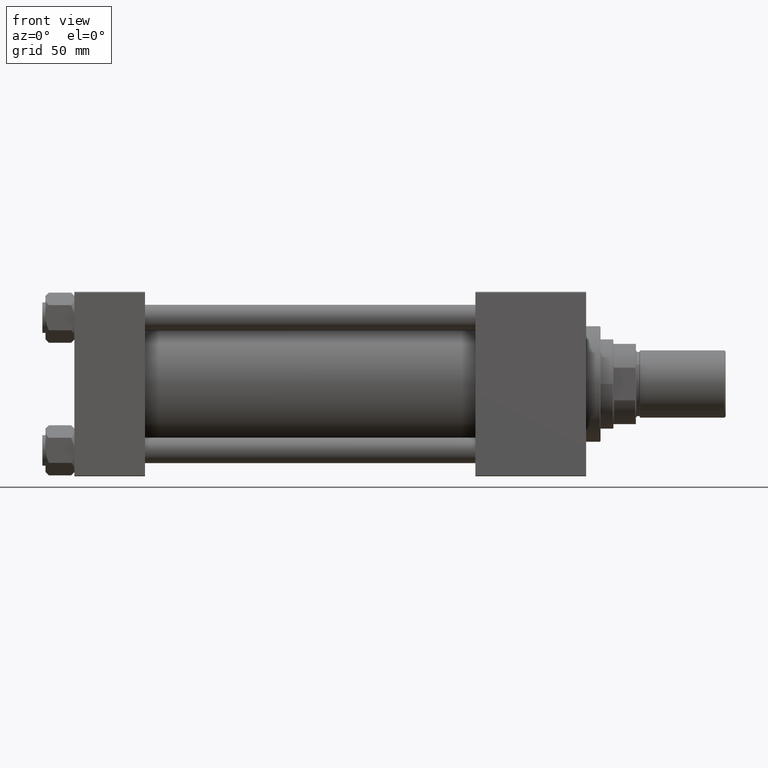
[diagram: clean part render]
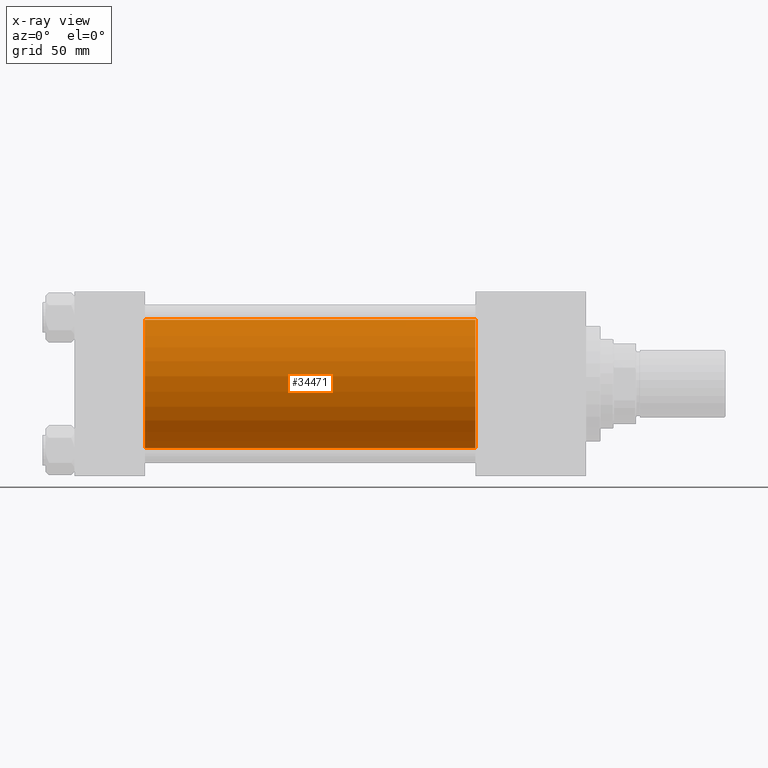
[diagram: x-ray — body ghosted, one internal face saturated and labeled with its STEP entity id]
A machine part, front view, then the same camera in x-ray: the body is ghosted and one INTERNAL B-rep face — a face not visible from any outside direction — is saturated and labeled: STEP entity #34471.
In plain terms, the highlighted cylindrical surface (partial cylindrical patch) has radius 40 mm, axis along (-1, -0, -0).
Its self-contained STEP definition (entity closure, byte-faithful):
#2723 = CARTESIAN_POINT ( 'NONE',  ( 250.0000000000000000, -2.602085213965210642E-15, 0.000000000000000000 ) ) ;
#3657 = CARTESIAN_POINT ( 'NONE',  ( 250.0000000000000000, -2.602085213965210642E-15, 40.00000000000000000 ) ) ;
#3980 = VERTEX_POINT ( 'NONE', #23533 ) ;
#5097 = AXIS2_PLACEMENT_3D ( 'NONE', #2723, #46019, #42399 ) ;
#5732 = CARTESIAN_POINT ( 'NONE',  ( 250.0000000000000000, -2.602085213965210642E-15, 40.00000000000000000 ) ) ;
#6730 = DIRECTION ( 'NONE',  ( 1.000000000000000000, 0.000000000000000000, 0.000000000000000000 ) ) ;
#8008 = VECTOR ( 'NONE', #32485, 1000.000000000000000 ) ;
#8156 = EDGE_CURVE ( 'NONE', #30915, #3980, #44650, .T. ) ;
#10789 = EDGE_CURVE ( 'NONE', #3980, #37395, #12261, .T. ) ;
#10990 = EDGE_CURVE ( 'NONE', #21514, #37395, #24367, .T. ) ;
#11248 = ORIENTED_EDGE ( 'NONE', *, *, #10789, .F. ) ;
#12261 = CIRCLE ( 'NONE', #23856, 40.00000000000000000 ) ;
#16939 = ORIENTED_EDGE ( 'NONE', *, *, #8156, .F. ) ;
#21514 = VERTEX_POINT ( 'NONE', #48261 ) ;
#23071 = CARTESIAN_POINT ( 'NONE',  ( 44.00000000000000000, -2.602085213965210642E-15, 0.000000000000000000 ) ) ;
#23533 = CARTESIAN_POINT ( 'NONE',  ( 44.00000000000000000, -2.602085213965210642E-15, 40.00000000000000000 ) ) ;
#23856 = AXIS2_PLACEMENT_3D ( 'NONE', #23071, #6730, #30352 ) ;
#24367 = LINE ( 'NONE', #32162, #46194 ) ;
#25227 = AXIS2_PLACEMENT_3D ( 'NONE', #27043, #42839, #46973 ) ;
#27043 = CARTESIAN_POINT ( 'NONE',  ( 250.0000000000000000, -2.602085213965210642E-15, 0.000000000000000000 ) ) ;
#27711 = CIRCLE ( 'NONE', #25227, 40.00000000000000000 ) ;
#29212 = FACE_OUTER_BOUND ( 'NONE', #46250, .T. ) ;
#30352 = DIRECTION ( 'NONE',  ( 0.000000000000000000, 0.000000000000000000, -1.000000000000000000 ) ) ;
#30915 = VERTEX_POINT ( 'NONE', #3657 ) ;
#32162 = CARTESIAN_POINT ( 'NONE',  ( 250.0000000000000000, 2.296501982624201990E-15, -40.00000000000000000 ) ) ;
#32485 = DIRECTION ( 'NONE',  ( -1.000000000000000000, -0.000000000000000000, -0.000000000000000000 ) ) ;
#34471 = ADVANCED_FACE ( 'NONE', ( #29212 ), #45004, .F. ) ;
#36653 = ORIENTED_EDGE ( 'NONE', *, *, #43609, .T. ) ;
#37395 = VERTEX_POINT ( 'NONE', #38563 ) ;
#38563 = CARTESIAN_POINT ( 'NONE',  ( 44.00000000000000000, 2.296501982624201990E-15, -40.00000000000000000 ) ) ;
#42399 = DIRECTION ( 'NONE',  ( 0.000000000000000000, 0.000000000000000000, 1.000000000000000000 ) ) ;
#42839 = DIRECTION ( 'NONE',  ( 1.000000000000000000, 0.000000000000000000, 0.000000000000000000 ) ) ;
#43609 = EDGE_CURVE ( 'NONE', #30915, #21514, #27711, .T. ) ;
#43941 = ORIENTED_EDGE ( 'NONE', *, *, #10990, .T. ) ;
#44312 = DIRECTION ( 'NONE',  ( -1.000000000000000000, -0.000000000000000000, -0.000000000000000000 ) ) ;
#44650 = LINE ( 'NONE', #5732, #8008 ) ;
#45004 = CYLINDRICAL_SURFACE ( 'NONE', #5097, 40.00000000000000000 ) ;
#46019 = DIRECTION ( 'NONE',  ( -1.000000000000000000, -0.000000000000000000, -0.000000000000000000 ) ) ;
#46194 = VECTOR ( 'NONE', #44312, 1000.000000000000000 ) ;
#46250 = EDGE_LOOP ( 'NONE', ( #36653, #43941, #11248, #16939 ) ) ;
#46973 = DIRECTION ( 'NONE',  ( 0.000000000000000000, 0.000000000000000000, -1.000000000000000000 ) ) ;
#48261 = CARTESIAN_POINT ( 'NONE',  ( 250.0000000000000000, 2.296501982624201990E-15, -40.00000000000000000 ) ) ;